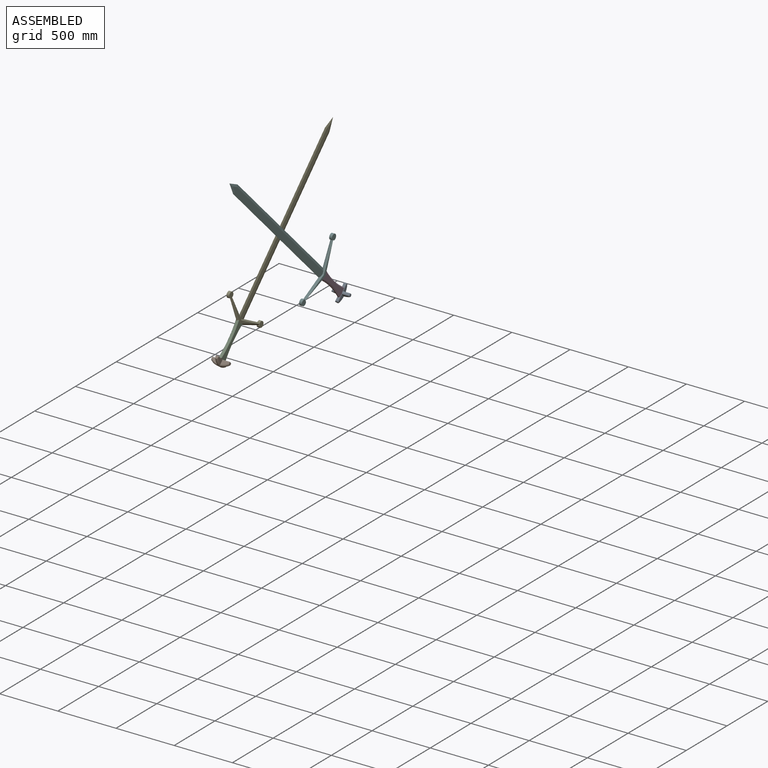
[diagram: assembled view]
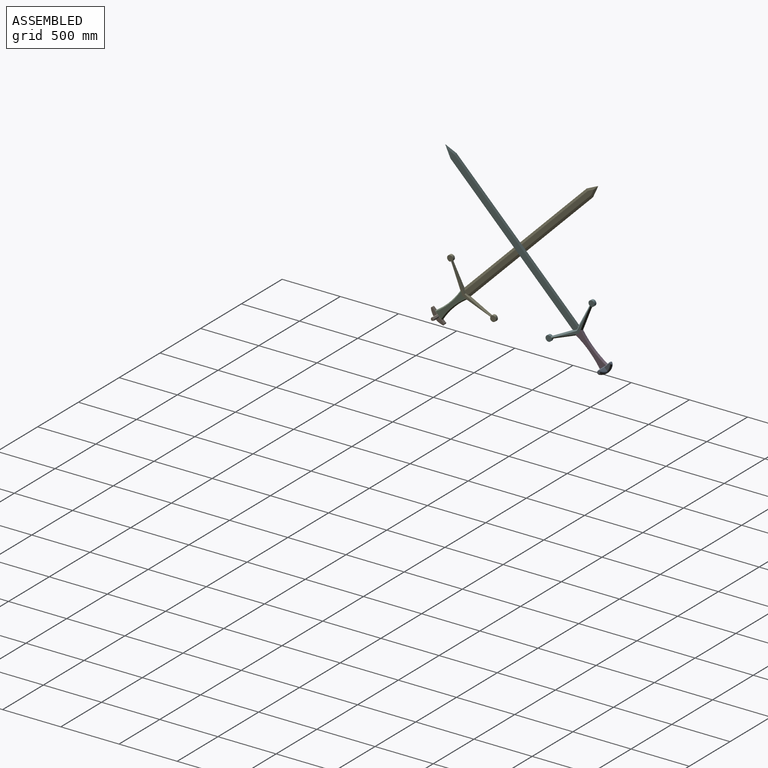
[diagram: assembled view, second angle]
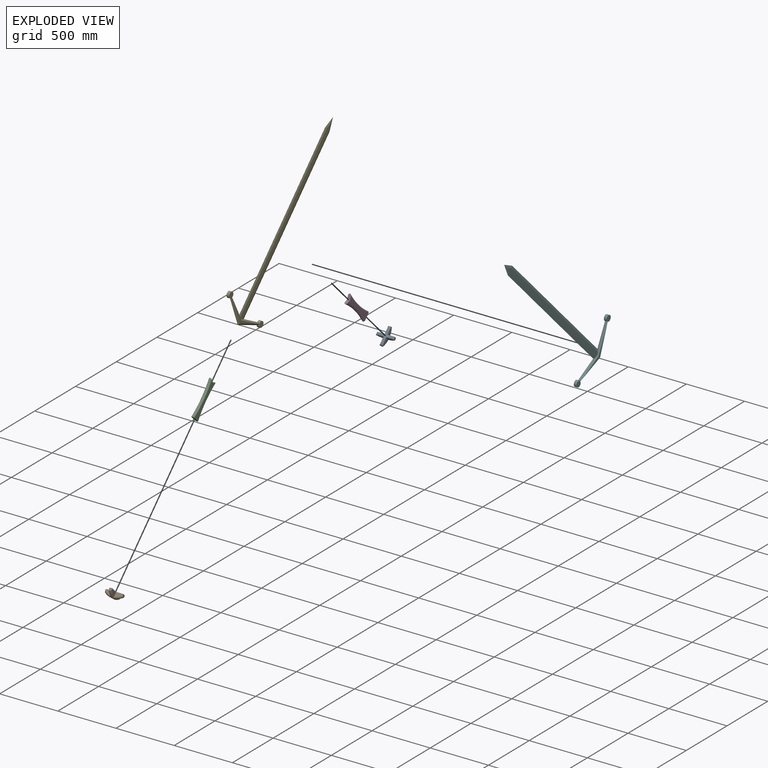
[diagram: exploded view]
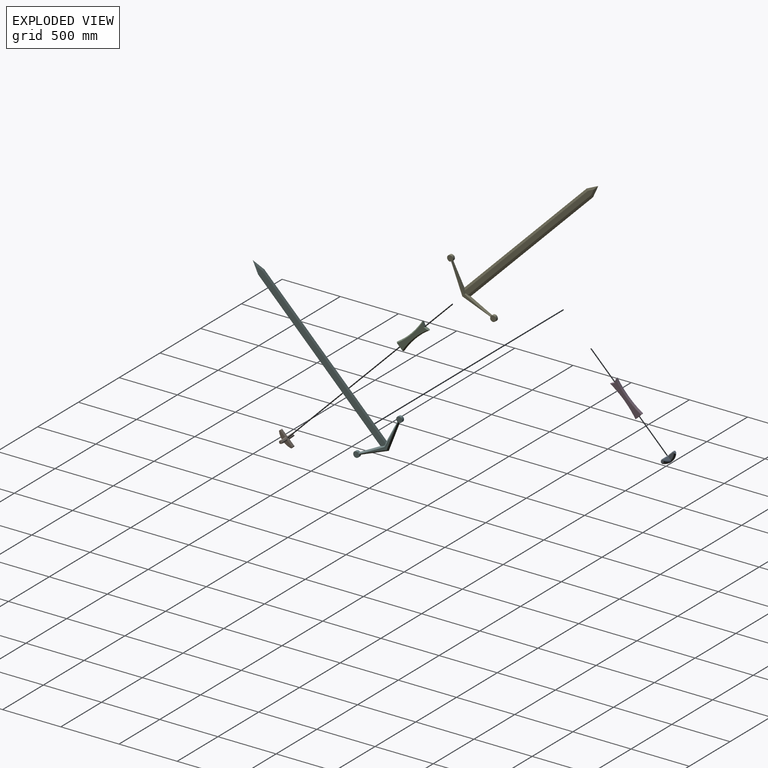
[diagram: exploded view, second angle]
ASSEMBLY  parts=6 mates=4
PART A: 32 faces, bbox 183.3x183.3x60.4 mm
  f0: plane 63.5x32.31mm, normal (0,-1,0), area 1402.8mm2, adj f11,f19,f24,f26
  f1: plane 63.5x32.31mm, normal (0,1,0), area 1402.8mm2, adj f2,f18,f22,f29
  f2: plane 63.5x32.31mm, normal (1,0,0), area 1402.8mm2, adj f1,f4,f5,f9
  f3: plane 63.5x32.31mm, normal (-1,0,0), area 1402.8mm2, adj f4,f6,f9,f21
  f4: torus R=114.3mm, axis (1,0,0), area 2739.5mm2, adj f2,f3,f9,f25
  f5: plane 68.58x5.08mm, normal (0.71,0,0.71), area 456.2mm2, adj f2,f7,f14,f29
  f6: plane 68.58x5.08mm, normal (-0.71,0,0.71), area 456.2mm2, adj f3,f7,f14,f27
  f7: plane 142.24x142.24mm, normal (0,0,1), area 4103.2mm2, adj f5,f6,f13,f14,f15,f16,f26,f27
  f8: plane 25.4x20.32mm, normal (0,-1,0), area 428.4mm2, adj f10,f11,f12,f15
  f9: plane 25.4x20.32mm, normal (0,1,0), area 428.4mm2, adj f2,f3,f4,f14
  f10: plane 63.5x32.31mm, normal (1,0,0), area 1402.8mm2, adj f8,f12,f13,f20
  f11: plane 63.5x32.31mm, normal (-1,0,0), area 1402.8mm2, adj f0,f8,f12,f16
  f12: torus R=114.3mm, axis (1,0,0), area 2739.4mm2, adj f8,f10,f11,f23
  f13: plane 68.58x5.08mm, normal (0.71,0,0.71), area 456.2mm2, adj f7,f10,f15,f31
  f14: plane 25.4x5.08mm, normal (0,0.71,0.71), area 146mm2, adj f5,f6,f7,f9
  f15: plane 25.4x5.08mm, normal (0,-0.71,0.71), area 146mm2, adj f7,f8,f13,f16
  f16: plane 68.58x5.08mm, normal (-0.71,0,0.71), area 456.2mm2, adj f7,f11,f15,f26
  f17: cylinder r=127mm len=28.22mm, axis (0,1,0), area 143.1mm2, adj f23,f25
  f18: plane 25.4x20.32mm, normal (1,0,0), area 428.4mm2, adj f1,f20,f22,f30
  f19: plane 25.4x20.32mm, normal (-1,0,0), area 428.4mm2, adj f0,f21,f24,f28
  f20: plane 63.5x32.31mm, normal (0,-1,0), area 1402.8mm2, adj f10,f18,f22,f31
  f21: plane 63.5x32.31mm, normal (0,1,0), area 1402.8mm2, adj f3,f19,f24,f27
  f22: torus R=114.3mm, axis (0,-1,0), area 2739.5mm2, adj f1,f18,f20,f23,f25
  f23: bspline ~30.26x13.53mm, area 333.9mm2, adj f12,f17,f22,f24
  f24: torus R=114.3mm, axis (0,-1,0), area 2739.4mm2, adj f0,f19,f21,f23,f25
  f25: bspline ~30.26x13.53mm, area 333.9mm2, adj f4,f17,f22,f24
  f26: plane 68.58x5.08mm, normal (0,-0.71,0.71), area 456.2mm2, adj f0,f7,f16,f28
  f27: plane 68.58x5.08mm, normal (0,0.71,0.71), area 456.2mm2, adj f6,f7,f21,f28
  f28: plane 25.4x5.08mm, normal (-0.71,0,0.71), area 146mm2, adj f7,f19,f26,f27
  f29: plane 68.58x5.08mm, normal (0,0.71,0.71), area 456.2mm2, adj f1,f5,f7,f30
  f30: plane 25.4x5.08mm, normal (0.71,0,0.71), area 146mm2, adj f7,f18,f29,f31
  f31: plane 68.58x5.08mm, normal (0,-0.71,0.71), area 456.2mm2, adj f7,f13,f20,f30
PART B: same geometry as A
PART C: 11 faces, bbox 25.4x82.1x313.5 mm
  f0: plane 82.15x25.41mm, normal (0,0,-1), area 1967.4mm2, adj f1,f4,f5,f6,f7,f8,f9,f10
  f1: cylinder r=711.2mm len=310.17mm, axis (-1,0,0), area 3176.8mm2, adj f0,f2,f7,f8
  f2: plane 41.07x25.4mm, normal (0,-0.4,0.92), area 1067.6mm2, adj f1,f3,f5,f6,f7,f8
  f3: plane 41.07x25.4mm, normal (0,0.4,0.92), area 1067.9mm2, adj f2,f4,f5,f6,f9,f10
  f4: cylinder r=711.2mm len=310.18mm, axis (-1,0,0), area 3176.9mm2, adj f0,f3,f9,f10
  f5: plane 306.38x66.53mm, normal (1,0,0), area 12904.9mm2, adj f0,f2,f3,f8,f10
  f6: plane 306.38x66.53mm, normal (-1,0,0), area 12904.9mm2, adj f0,f2,f3,f7,f9
  f7: cone r=718.82mm half-angle=45deg, axis (-1,0,0), area 3348.3mm2, adj f0,f1,f2,f6
  f8: cone r=711.2mm half-angle=45deg, axis (1,0,0), area 3348.3mm2, adj f0,f1,f2,f5
  f9: cone r=718.82mm half-angle=45deg, axis (-1,0,0), area 3348.4mm2, adj f0,f3,f4,f6
  f10: cone r=711.2mm half-angle=45deg, axis (1,0,0), area 3348.4mm2, adj f0,f3,f4,f5
PART D: same geometry as C
PART E: 44 faces, bbox 25.4x573.1x1652.4 mm
  f0: plane 1554.66x38.1mm, normal (-1,0,0), area 58150.7mm2, adj f1,f5,f6,f9,f16,f18
  f1: plane 1497.87x19.05mm, normal (-0.97,-0.24,0), area 29307.3mm2, adj f0,f2,f9,f11,f16
  f2: plane 1497.87x19.05mm, normal (0.97,-0.24,0), area 29307.3mm2, adj f1,f3,f8,f11,f20
  f3: plane 1554.66x38.1mm, normal (1,0,0), area 58150.7mm2, adj f2,f4,f7,f8,f20,f22
  f4: plane 101.6x38.1mm, normal (0.97,0.24,0.09), area 1502.5mm2, adj f3,f5,f7,f8
  f5: plane 101.6x38.1mm, normal (-0.97,0.24,0.09), area 1502.5mm2, adj f0,f4,f6,f9
  f6: plane 1497.87x19.05mm, normal (-0.97,0.24,0), area 29307.3mm2, adj f0,f5,f7,f10,f18
  f7: plane 1497.87x19.05mm, normal (0.97,0.24,0), area 29307.3mm2, adj f3,f4,f6,f10,f22
  f8: plane 101.6x38.1mm, normal (0.97,-0.24,0.09), area 1502.5mm2, adj f2,f3,f4,f9
  f9: plane 101.6x38.1mm, normal (-0.97,-0.24,0.09), area 1502.5mm2, adj f0,f1,f5,f8
  f10: plane 186.82x58.75mm, normal (0,-0.3,0.95), area 417.9mm2, adj f6,f7,f18,f22,f43
  f11: plane 186.82x58.75mm, normal (0,0.3,0.95), area 417.9mm2, adj f1,f2,f16,f20,f28
  f12: plane 228.18x100.02mm, normal (0,-0.4,-0.92), area 537.9mm2, adj f13,f17,f21,f32
  f13: plane 228.18x100.02mm, normal (0,0.4,-0.92), area 537.9mm2, adj f12,f19,f23,f38
  f14: plane 418.73x91.77mm, normal (1,0,0), area 5429mm2, adj f20,f21,f22,f23
  f15: plane 418.73x91.77mm, normal (-1,0,0), area 5429mm2, adj f16,f17,f18,f19
  f16: plane 224.39x81.56mm, normal (-0.71,0.21,0.67), area 3681.6mm2, adj f0,f1,f11,f15,f17,f18,f29
  f17: plane 228.18x110.1mm, normal (-0.71,-0.28,-0.65), area 4047.7mm2, adj f12,f15,f16,f19,f31
  f18: plane 224.39x81.56mm, normal (-0.71,-0.21,0.67), area 3681.6mm2, adj f0,f6,f10,f15,f16,f19,f41
  f19: plane 228.18x110.1mm, normal (-0.71,0.28,-0.65), area 4047.7mm2, adj f13,f15,f17,f18,f39
  f20: plane 224.39x81.56mm, normal (0.71,0.21,0.67), area 3681.6mm2, adj f2,f3,f11,f14,f21,f22,f30
  f21: plane 228.18x110.1mm, normal (0.71,-0.28,-0.65), area 4047.7mm2, adj f12,f14,f20,f23,f33
  f22: plane 224.39x81.56mm, normal (0.71,-0.21,0.67), area 3681.6mm2, adj f3,f7,f10,f14,f20,f23,f42
  f23: plane 228.18x110.1mm, normal (0.71,0.28,-0.65), area 4047.7mm2, adj f13,f14,f21,f22,f40
  f24: cylinder r=25.4mm len=50.8mm, axis (-1,0,0), area 3312.5mm2, adj f25,f26,f27,f28,f29,f30
  f25: plane 24.13x20.16mm, normal (0,0.94,-0.35), area 243.3mm2, adj f24,f26,f27,f29,f30,f31,f32,f33
  f26: plane 50.8x50.72mm, normal (1,0,0), area 1992.1mm2, adj f24,f25
  f27: plane 50.8x50.72mm, normal (-1,0,0), area 1992.1mm2, adj f24,f25
  f28: plane 15.3x5.75mm, normal (0,0.35,0.94), area 35.3mm2, adj f11,f24,f29,f30
  f29: plane 18.82x15.83mm, normal (-0.71,0.25,0.66), area 244.4mm2, adj f16,f24,f25,f28,f31
  f30: plane 18.82x15.83mm, normal (0.71,0.25,0.66), area 244.4mm2, adj f20,f24,f25,f28,f33
  f31: plane 18.81x15.73mm, normal (-0.71,-0.25,-0.66), area 244.2mm2, adj f17,f25,f29,f32
  f32: plane 15.03x5.65mm, normal (0,-0.35,-0.94), area 34.7mm2, adj f12,f25,f31,f33
  f33: plane 18.81x15.73mm, normal (0.71,-0.25,-0.66), area 244.2mm2, adj f21,f25,f30,f32
  f34: plane 24.13x20.16mm, normal (0,-0.94,-0.35), area 243.3mm2, adj f35,f36,f37,f38,f39,f40,f41,f42
  f35: cylinder r=25.4mm len=50.8mm, axis (-1,0,0), area 3312.5mm2, adj f34,f36,f37,f41,f42,f43
  f36: plane 50.8x50.72mm, normal (1,0,0), area 1992.1mm2, adj f34,f35
  f37: plane 50.8x50.72mm, normal (-1,0,0), area 1992.1mm2, adj f34,f35
  f38: plane 15.03x5.65mm, normal (0,0.35,-0.94), area 34.7mm2, adj f13,f34,f39,f40
  f39: plane 18.81x15.73mm, normal (-0.71,0.25,-0.66), area 244.2mm2, adj f19,f34,f38,f41
  f40: plane 18.81x15.73mm, normal (0.71,0.25,-0.66), area 244.2mm2, adj f23,f34,f38,f42
  f41: plane 18.82x15.83mm, normal (-0.71,-0.25,0.66), area 244.4mm2, adj f18,f34,f35,f39,f43
  f42: plane 18.82x15.83mm, normal (0.71,-0.25,0.66), area 244.4mm2, adj f22,f34,f35,f40,f43
  f43: plane 15.3x5.75mm, normal (0,-0.35,0.94), area 35.3mm2, adj f10,f35,f41,f42
PART F: same geometry as E
PLACE A rot(axis=(1,0,0),45deg) t=(-655.67,674.24,-216.58)mm
PLACE B rot(axis=(-1,0,0),45deg) t=(-676.77,-286.65,-202.4)mm
PLACE C rot(axis=(-1,0,0),45deg) t=(-676.77,-286.65,-202.4)mm
PLACE D rot(axis=(1,0,0),45deg) t=(-655.67,674.24,-216.58)mm
PLACE E rot(axis=(-1,0,0),45deg) t=(-676.77,-287.94,-203.69)mm
PLACE F rot(axis=(1,0,0),45deg) t=(-655.67,675.54,-217.87)mm
MATE fastened C.f0 <-> B.f7  axis (0,-0.71,-0.71) through (-676.77,-520.13,-435.89)mm
MATE fastened C.f5 <-> E.f14  axis (1,0,0) through (-664.07,-416.28,-332.04)mm
MATE fastened D.f5 <-> F.f14  axis (1,0,0) through (-642.97,803.88,-346.22)mm
MATE fastened D.f0 <-> A.f7  axis (0,0.71,-0.71) through (-655.67,907.73,-450.07)mm
